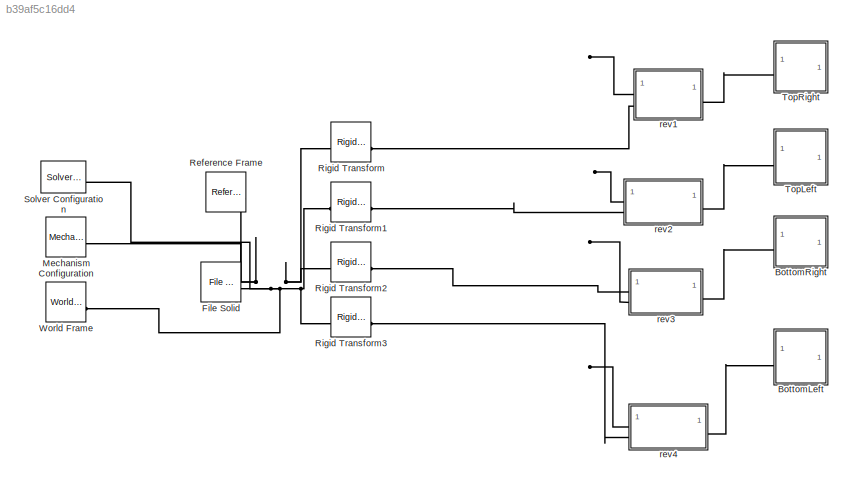
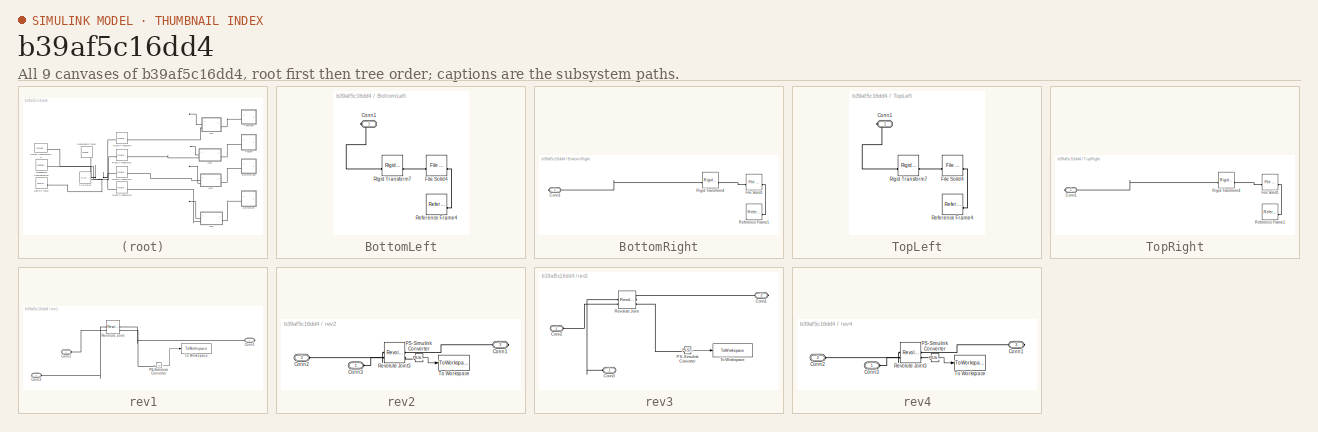
[diagram: thumbnail index - all 9 canvases of the model, root first then tree order]
MODEL slx_b39af5c16dd4
KIND model
CONFIG AbsTol = auto
CONFIG EnableMultiTasking = off
CONFIG FixedStep = auto
CONFIG MaxStep = auto
CONFIG MinStep = auto
CONFIG RelTol = 1e-3
CONFIG SampleTimeConstraint = Unconstrained
CONFIG SolverName = VariableStepAuto
CONFIG StartTime = 0.0
CONFIG StopTime = 10
BLOCK [SubSystem] BottomLeft
BLOCK [PMIOPort] BottomLeft/Conn1
  Side = Right
BLOCK [Reference] BottomLeft/File Solid4  REF=sm_lib/Body Elements/File Solid
  NameLocation = left
  SourceBlock = sm_lib/Body Elements/File Solid
  SourceType = File Solid
BLOCK [Reference] BottomLeft/Reference Frame4  REF=sm_lib/Frames and
Transforms/Reference
Frame
  SourceBlock = sm_lib/Frames and\nTransforms/Reference\nFrame
  SourceType = Reference\nFrame
BLOCK [Reference] BottomLeft/Rigid Transform7  REF=sm_lib/Frames and
Transforms/Rigid
Transform
  SourceBlock = sm_lib/Frames and\nTransforms/Rigid\nTransform
  SourceType = Rigid\nTransform
BLOCK [SubSystem] BottomRight
BLOCK [PMIOPort] BottomRight/Conn1
  Side = Right
BLOCK [Reference] BottomRight/File Solid1  REF=sm_lib/Body Elements/File Solid
  NameLocation = left
  SourceBlock = sm_lib/Body Elements/File Solid
  SourceType = File Solid
BLOCK [Reference] BottomRight/Reference Frame1  REF=sm_lib/Frames and
Transforms/Reference
Frame
  SourceBlock = sm_lib/Frames and\nTransforms/Reference\nFrame
  SourceType = Reference\nFrame
BLOCK [Reference] BottomRight/Rigid Transform4  REF=sm_lib/Frames and
Transforms/Rigid
Transform
  SourceBlock = sm_lib/Frames and\nTransforms/Rigid\nTransform
  SourceType = Rigid\nTransform
BLOCK [Reference] File Solid  REF=sm_lib/Body Elements/File Solid
  SourceBlock = sm_lib/Body Elements/File Solid
  SourceType = File Solid
BLOCK [Reference] Mechanism Configuration  REF=sm_lib/Utilities/Mechanism
Configuration
  SourceBlock = sm_lib/Utilities/Mechanism\nConfiguration
  SourceType = Mechanism\nConfiguration
BLOCK [Reference] Reference Frame  REF=sm_lib/Frames and
Transforms/Reference
Frame
  SourceBlock = sm_lib/Frames and\nTransforms/Reference\nFrame
  SourceType = Reference\nFrame
BLOCK [Reference] Rigid Transform  REF=sm_lib/Frames and
Transforms/Rigid
Transform
  SourceBlock = sm_lib/Frames and\nTransforms/Rigid\nTransform
  SourceType = Rigid\nTransform
BLOCK [Reference] Rigid Transform1  REF=sm_lib/Frames and
Transforms/Rigid
Transform
  SourceBlock = sm_lib/Frames and\nTransforms/Rigid\nTransform
  SourceType = Rigid\nTransform
BLOCK [Reference] Rigid Transform2  REF=sm_lib/Frames and
Transforms/Rigid
Transform
  SourceBlock = sm_lib/Frames and\nTransforms/Rigid\nTransform
  SourceType = Rigid\nTransform
BLOCK [Reference] Rigid Transform3  REF=sm_lib/Frames and
Transforms/Rigid
Transform
  SourceBlock = sm_lib/Frames and\nTransforms/Rigid\nTransform
  SourceType = Rigid\nTransform
BLOCK [Reference] Solver Configuration  REF=nesl_utility/Solver
Configuration
  SourceBlock = nesl_utility/Solver\nConfiguration
  SourceType = Solver\nConfiguration
BLOCK [SubSystem] TopLeft
BLOCK [PMIOPort] TopLeft/Conn1
  Side = Right
BLOCK [Reference] TopLeft/File Solid4  REF=sm_lib/Body Elements/File Solid
  NameLocation = left
  SourceBlock = sm_lib/Body Elements/File Solid
  SourceType = File Solid
BLOCK [Reference] TopLeft/Reference Frame4  REF=sm_lib/Frames and
Transforms/Reference
Frame
  SourceBlock = sm_lib/Frames and\nTransforms/Reference\nFrame
  SourceType = Reference\nFrame
BLOCK [Reference] TopLeft/Rigid Transform7  REF=sm_lib/Frames and
Transforms/Rigid
Transform
  SourceBlock = sm_lib/Frames and\nTransforms/Rigid\nTransform
  SourceType = Rigid\nTransform
BLOCK [SubSystem] TopRight
BLOCK [PMIOPort] TopRight/Conn1
  Side = Right
BLOCK [Reference] TopRight/File Solid1  REF=sm_lib/Body Elements/File Solid
  NameLocation = left
  SourceBlock = sm_lib/Body Elements/File Solid
  SourceType = File Solid
BLOCK [Reference] TopRight/Reference Frame1  REF=sm_lib/Frames and
Transforms/Reference
Frame
  SourceBlock = sm_lib/Frames and\nTransforms/Reference\nFrame
  SourceType = Reference\nFrame
BLOCK [Reference] TopRight/Rigid Transform4  REF=sm_lib/Frames and
Transforms/Rigid
Transform
  SourceBlock = sm_lib/Frames and\nTransforms/Rigid\nTransform
  SourceType = Rigid\nTransform
BLOCK [Reference] World Frame  REF=sm_lib/Frames and
Transforms/World Frame
  SourceBlock = sm_lib/Frames and\nTransforms/World Frame
  SourceType = World Frame
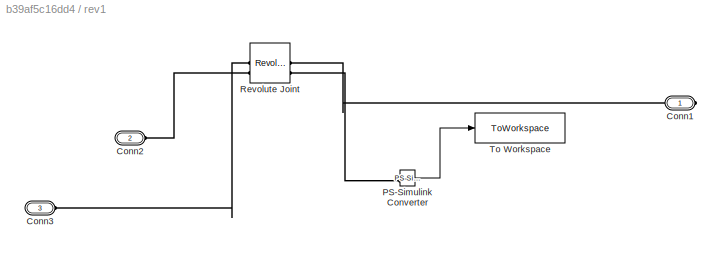
BLOCK [SubSystem] rev1
BLOCK [PMIOPort] rev1/Conn1
  Side = Right
BLOCK [PMIOPort] rev1/Conn2
  Port = 2
  Side = Left
BLOCK [PMIOPort] rev1/Conn3
  Port = 3
  Side = Left
BLOCK [Reference] rev1/PS-Simulink Converter  REF=nesl_utility/PS-Simulink
Converter
  SourceBlock = nesl_utility/PS-Simulink\nConverter
  SourceType = PS-Simulink\nConverter
BLOCK [Reference] rev1/Revolute Joint  REF=sm_lib/Joints/Revolute Joint
  SourceBlock = sm_lib/Joints/Revolute Joint
  SourceType = Revolute Joint
BLOCK [ToWorkspace] rev1/To Workspace
  FixptAsFi = on
  MaxDataPoints = inf
  SampleTime = -1
  SaveFormat = Timeseries
  VariableName = wtopRight
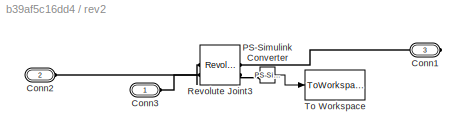
BLOCK [SubSystem] rev2
BLOCK [PMIOPort] rev2/Conn1
  Port = 3
  Side = Right
BLOCK [PMIOPort] rev2/Conn2
  Port = 2
  Side = Left
BLOCK [PMIOPort] rev2/Conn3
  Side = Left
BLOCK [Reference] rev2/PS-Simulink Converter  REF=nesl_utility/PS-Simulink
Converter
  SourceBlock = nesl_utility/PS-Simulink\nConverter
  SourceType = PS-Simulink\nConverter
BLOCK [Reference] rev2/Revolute Joint3  REF=sm_lib/Joints/Revolute Joint
  SourceBlock = sm_lib/Joints/Revolute Joint
  SourceType = Revolute Joint
BLOCK [ToWorkspace] rev2/To Workspace
  MaxDataPoints = inf
  SampleTime = -1
  SaveFormat = Timeseries
  VariableName = wtopLeft
BLOCK [SubSystem] rev3
BLOCK [PMIOPort] rev3/Conn1
  Port = 3
  Side = Right
BLOCK [PMIOPort] rev3/Conn2
  Port = 2
  Side = Left
BLOCK [PMIOPort] rev3/Conn3
  Side = Left
BLOCK [Reference] rev3/PS-Simulink Converter  REF=nesl_utility/PS-Simulink
Converter
  SourceBlock = nesl_utility/PS-Simulink\nConverter
  SourceType = PS-Simulink\nConverter
BLOCK [Reference] rev3/Revolute Joint  REF=sm_lib/Joints/Revolute Joint
  SourceBlock = sm_lib/Joints/Revolute Joint
  SourceType = Revolute Joint
BLOCK [ToWorkspace] rev3/To Workspace
  FixptAsFi = on
  MaxDataPoints = inf
  SampleTime = -1
  SaveFormat = Timeseries
  VariableName = wbottomRight
BLOCK [SubSystem] rev4
BLOCK [PMIOPort] rev4/Conn1
  Port = 3
  Side = Right
BLOCK [PMIOPort] rev4/Conn2
  Port = 2
  Side = Left
BLOCK [PMIOPort] rev4/Conn3
  Side = Left
BLOCK [Reference] rev4/PS-Simulink Converter  REF=nesl_utility/PS-Simulink
Converter
  SourceBlock = nesl_utility/PS-Simulink\nConverter
  SourceType = PS-Simulink\nConverter
BLOCK [Reference] rev4/Revolute Joint3  REF=sm_lib/Joints/Revolute Joint
  SourceBlock = sm_lib/Joints/Revolute Joint
  SourceType = Revolute Joint
BLOCK [ToWorkspace] rev4/To Workspace
  MaxDataPoints = inf
  SampleTime = -1
  SaveFormat = Timeseries
  VariableName = wbottomLeft
LINE rev1/PS-Simulink Converter:1 -> rev1/To Workspace:1
LINE rev2/PS-Simulink Converter:1 -> rev2/To Workspace:1
LINE rev3/PS-Simulink Converter:1 -> rev3/To Workspace:1
LINE rev4/PS-Simulink Converter:1 -> rev4/To Workspace:1
PLINE BottomLeft/Conn1:RConn1 -- BottomLeft/Rigid Transform7:RConn1
PLINE BottomLeft/File Solid4:LConn1 -- BottomLeft/Rigid Transform7:LConn1
PLINE BottomLeft/File Solid4:RConn1 -- BottomLeft/Reference Frame4:RConn1
PLINE BottomLeft:RConn1 -- rev4:RConn1
PLINE BottomRight/Conn1:RConn1 -- BottomRight/Rigid Transform4:RConn1
PLINE BottomRight/File Solid1:LConn1 -- BottomRight/Rigid Transform4:LConn1
PLINE BottomRight/File Solid1:RConn1 -- BottomRight/Reference Frame1:RConn1
PLINE BottomRight:RConn1 -- rev3:RConn1
PNET net1: File Solid:RConn1 -- Mechanism Configuration:RConn1 -- Reference Frame:RConn1 -- Rigid Transform1:LConn1 -- Rigid Transform2:LConn1 -- Rigid Transform3:LConn1 -- Rigid Transform:LConn1 -- Solver Configuration:RConn1 -- World Frame:RConn1
PLINE Rigid Transform1:RConn1 -- rev2:LConn2
PLINE Rigid Transform2:RConn1 -- rev3:LConn1
PLINE Rigid Transform3:RConn1 -- rev4:LConn2
PLINE Rigid Transform:RConn1 -- rev1:LConn2
PLINE TopLeft/Conn1:RConn1 -- TopLeft/Rigid Transform7:RConn1
PLINE TopLeft/File Solid4:LConn1 -- TopLeft/Rigid Transform7:LConn1
PLINE TopLeft/File Solid4:RConn1 -- TopLeft/Reference Frame4:RConn1
PLINE TopLeft:RConn1 -- rev2:RConn1
PLINE TopRight/Conn1:RConn1 -- TopRight/Rigid Transform4:RConn1
PLINE TopRight/File Solid1:LConn1 -- TopRight/Rigid Transform4:LConn1
PLINE TopRight/File Solid1:RConn1 -- TopRight/Reference Frame1:RConn1
PLINE TopRight:RConn1 -- rev1:RConn1
PLINE rev1/Conn1:RConn1 -- rev1/Revolute Joint:RConn1
PLINE rev1/Conn2:RConn1 -- rev1/Revolute Joint:LConn2
PLINE rev1/Conn3:RConn1 -- rev1/Revolute Joint:LConn1
PLINE rev1/PS-Simulink Converter:LConn1 -- rev1/Revolute Joint:RConn2
PLINE rev2/Conn1:RConn1 -- rev2/Revolute Joint3:RConn1
PLINE rev2/Conn2:RConn1 -- rev2/Revolute Joint3:LConn1
PLINE rev2/Conn3:RConn1 -- rev2/Revolute Joint3:LConn2
PLINE rev2/PS-Simulink Converter:LConn1 -- rev2/Revolute Joint3:RConn2
PLINE rev3/Conn1:RConn1 -- rev3/Revolute Joint:RConn1
PLINE rev3/Conn2:RConn1 -- rev3/Revolute Joint:LConn2
PLINE rev3/Conn3:RConn1 -- rev3/Revolute Joint:LConn1
PLINE rev3/PS-Simulink Converter:LConn1 -- rev3/Revolute Joint:RConn2
PLINE rev4/Conn1:RConn1 -- rev4/Revolute Joint3:RConn1
PLINE rev4/Conn2:RConn1 -- rev4/Revolute Joint3:LConn1
PLINE rev4/Conn3:RConn1 -- rev4/Revolute Joint3:LConn2
PLINE rev4/PS-Simulink Converter:LConn1 -- rev4/Revolute Joint3:RConn2
note: PNET lines group multi-terminal physical nets as a canonical sorted terminal list (undirected conserving connections); 2-terminal nets keep the pairwise PLINE form
